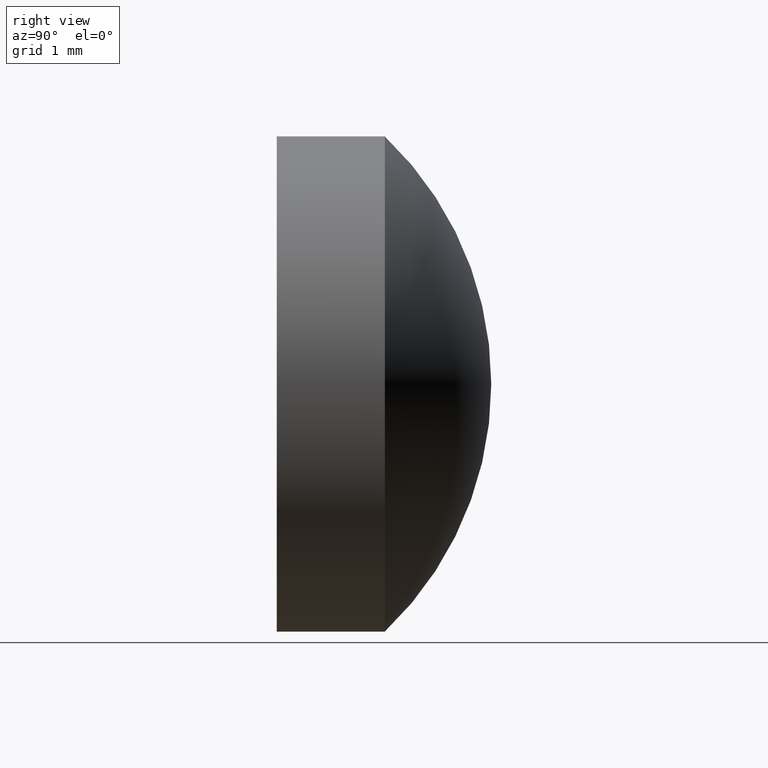
[diagram: clean part render]
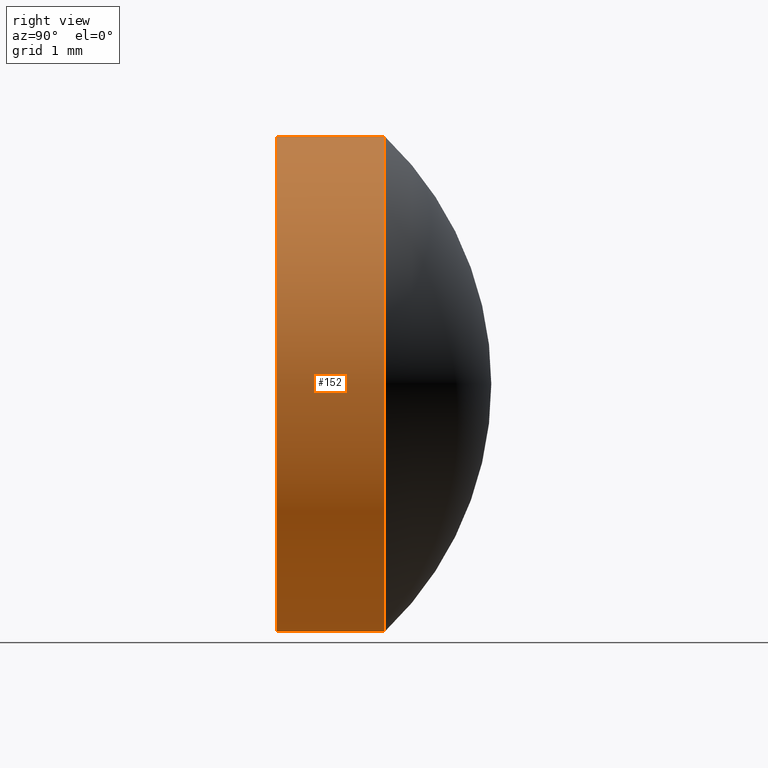
[diagram: same view with one face highlighted and labeled with its STEP entity id]
A machine part, right view. The second image highlights one B-rep face of the part: STEP entity #152.
In plain terms, the highlighted cylindrical surface (partial cylindrical patch) has radius 3 mm, axis along (-0, 1, -0).
Its self-contained STEP definition (entity closure, byte-faithful):
#4 = CIRCLE ( 'NONE', #167, 3.000000000000000000 ) ;
#11 = EDGE_CURVE ( 'NONE', #22, #98, #126, .T. ) ;
#12 = LINE ( 'NONE', #198, #51 ) ;
#13 = CARTESIAN_POINT ( 'NONE',  ( 0.000000000000000000, 2.600000000000000089, 0.000000000000000000 ) ) ;
#16 = LINE ( 'NONE', #139, #66 ) ;
#17 = DIRECTION ( 'NONE',  ( -0.000000000000000000, 1.000000000000000000, -0.000000000000000000 ) ) ;
#22 = VERTEX_POINT ( 'NONE', #54 ) ;
#25 = DIRECTION ( 'NONE',  ( 0.000000000000000000, 0.000000000000000000, 1.000000000000000000 ) ) ;
#27 = CARTESIAN_POINT ( 'NONE',  ( 3.673940397442059868E-16, 1.309999999999999609, -3.000000000000000000 ) ) ;
#49 = ORIENTED_EDGE ( 'NONE', *, *, #11, .T. ) ;
#51 = VECTOR ( 'NONE', #103, 1000.000000000000000 ) ;
#54 = CARTESIAN_POINT ( 'NONE',  ( 0.000000000000000000, -4.336808689942017736E-16, 3.000000000000000000 ) ) ;
#63 = EDGE_CURVE ( 'NONE', #98, #129, #12, .T. ) ;
#66 = VECTOR ( 'NONE', #17, 1000.000000000000000 ) ;
#70 = DIRECTION ( 'NONE',  ( -0.000000000000000000, 1.000000000000000000, -0.000000000000000000 ) ) ;
#78 = CARTESIAN_POINT ( 'NONE',  ( 0.000000000000000000, 1.309999999999999609, 3.000000000000000000 ) ) ;
#79 = AXIS2_PLACEMENT_3D ( 'NONE', #180, #101, #25 ) ;
#82 = EDGE_LOOP ( 'NONE', ( #49, #158, #157, #83 ) ) ;
#83 = ORIENTED_EDGE ( 'NONE', *, *, #174, .F. ) ;
#86 = DIRECTION ( 'NONE',  ( 0.000000000000000000, 0.000000000000000000, 1.000000000000000000 ) ) ;
#98 = VERTEX_POINT ( 'NONE', #120 ) ;
#101 = DIRECTION ( 'NONE',  ( -0.000000000000000000, 1.000000000000000000, -0.000000000000000000 ) ) ;
#103 = DIRECTION ( 'NONE',  ( -0.000000000000000000, 1.000000000000000000, -0.000000000000000000 ) ) ;
#108 = CYLINDRICAL_SURFACE ( 'NONE', #133, 3.000000000000000000 ) ;
#113 = EDGE_CURVE ( 'NONE', #193, #129, #4, .T. ) ;
#120 = CARTESIAN_POINT ( 'NONE',  ( 3.673940397442059868E-16, -4.336808689942017736E-16, -3.000000000000000000 ) ) ;
#121 = DIRECTION ( 'NONE',  ( -0.000000000000000000, 1.000000000000000000, -0.000000000000000000 ) ) ;
#126 = CIRCLE ( 'NONE', #79, 3.000000000000000000 ) ;
#129 = VERTEX_POINT ( 'NONE', #27 ) ;
#133 = AXIS2_PLACEMENT_3D ( 'NONE', #13, #70, #86 ) ;
#139 = CARTESIAN_POINT ( 'NONE',  ( 0.000000000000000000, 2.600000000000000089, 3.000000000000000000 ) ) ;
#151 = FACE_OUTER_BOUND ( 'NONE', #82, .T. ) ;
#152 = ADVANCED_FACE ( 'NONE', ( #151 ), #108, .T. ) ;
#157 = ORIENTED_EDGE ( 'NONE', *, *, #113, .F. ) ;
#158 = ORIENTED_EDGE ( 'NONE', *, *, #63, .T. ) ;
#163 = CARTESIAN_POINT ( 'NONE',  ( 0.000000000000000000, 1.309999999999999609, 0.000000000000000000 ) ) ;
#165 = DIRECTION ( 'NONE',  ( 0.000000000000000000, 0.000000000000000000, 1.000000000000000000 ) ) ;
#167 = AXIS2_PLACEMENT_3D ( 'NONE', #163, #121, #165 ) ;
#174 = EDGE_CURVE ( 'NONE', #22, #193, #16, .T. ) ;
#180 = CARTESIAN_POINT ( 'NONE',  ( 0.000000000000000000, -4.336808689942017736E-16, 0.000000000000000000 ) ) ;
#193 = VERTEX_POINT ( 'NONE', #78 ) ;
#198 = CARTESIAN_POINT ( 'NONE',  ( 3.673940397442059868E-16, 2.600000000000000089, -3.000000000000000000 ) ) ;